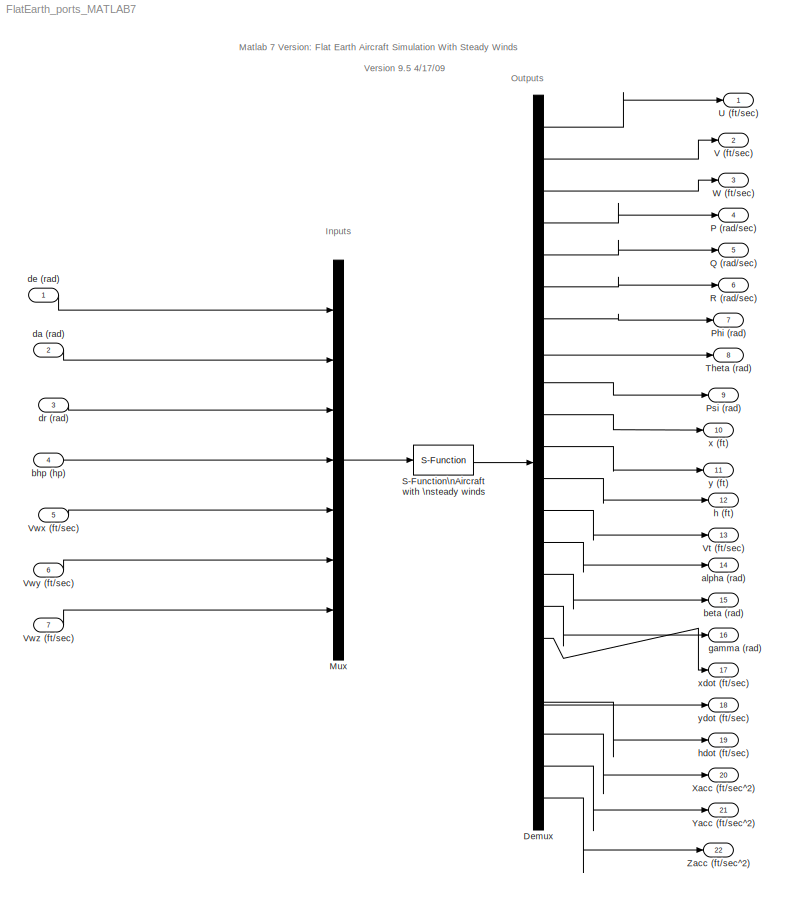
MODEL FlatEarth_ports_MATLAB7
KIND model
BLOCK [Demux] Demux
  Outputs = 22
  Ports = [1, 22]
BLOCK [Mux] Mux
  DisplayOption = bar
  Inputs = 7
  Ports = [7, 1]
BLOCK [Outport] P (rad//sec)
  BusOutputAsStruct = off
  IconDisplay = Port number
  Port = 4
BLOCK [Outport] Phi (rad)
  BusOutputAsStruct = off
  IconDisplay = Port number
  Port = 7
BLOCK [Outport] Psi (rad)
  BusOutputAsStruct = off
  IconDisplay = Port number
  Port = 9
BLOCK [Outport] Q (rad//sec)
  BusOutputAsStruct = off
  IconDisplay = Port number
  Port = 5
BLOCK [Outport] R (rad//sec)
  BusOutputAsStruct = off
  IconDisplay = Port number
  Port = 6
BLOCK [S-Function] S-Function\nAircraft with \nsteady winds
  FunctionName = aircraft9
  Parameters = constant,xIC,Xa
  Ports = [1, 1]
BLOCK [Outport] Theta (rad)
  BusOutputAsStruct = off
  IconDisplay = Port number
  Port = 8
BLOCK [Outport] U (ft//sec)
  BusOutputAsStruct = off
  IconDisplay = Port number
BLOCK [Outport] V (ft//sec)
  BusOutputAsStruct = off
  IconDisplay = Port number
  Port = 2
BLOCK [Outport] Vt (ft//sec)
  BusOutputAsStruct = off
  IconDisplay = Port number
  Port = 13
BLOCK [Inport] Vwx (ft//sec)
  IconDisplay = Port number
  LatchInput = off
  Port = 5
BLOCK [Inport] Vwy (ft//sec)
  IconDisplay = Port number
  LatchInput = off
  Port = 6
BLOCK [Inport] Vwz (ft//sec)
  IconDisplay = Port number
  LatchInput = off
  Port = 7
BLOCK [Outport] W (ft//sec)
  BusOutputAsStruct = off
  IconDisplay = Port number
  Port = 3
BLOCK [Outport] Xacc (ft//sec^2)
  BusOutputAsStruct = off
  IconDisplay = Port number
  Port = 20
BLOCK [Outport] Yacc (ft//sec^2)
  BusOutputAsStruct = off
  IconDisplay = Port number
  Port = 21
BLOCK [Outport] Zacc (ft//sec^2)
  BusOutputAsStruct = off
  IconDisplay = Port number
  Port = 22
BLOCK [Outport] alpha (rad)
  BusOutputAsStruct = off
  IconDisplay = Port number
  Port = 14
BLOCK [Outport] beta (rad)
  BusOutputAsStruct = off
  IconDisplay = Port number
  Port = 15
BLOCK [Inport] bhp (hp)
  IconDisplay = Port number
  LatchInput = off
  Port = 4
BLOCK [Inport] da (rad)
  IconDisplay = Port number
  LatchInput = off
  Port = 2
BLOCK [Inport] de (rad)
  IconDisplay = Port number
  LatchInput = off
  Port = 1
BLOCK [Inport] dr (rad)
  IconDisplay = Port number
  LatchInput = off
  Port = 3
BLOCK [Outport] gamma (rad)
  BusOutputAsStruct = off
  IconDisplay = Port number
  Port = 16
BLOCK [Outport] h (ft)
  BusOutputAsStruct = off
  IconDisplay = Port number
  Port = 12
BLOCK [Outport] hdot (ft//sec)
  BusOutputAsStruct = off
  IconDisplay = Port number
  Port = 19
BLOCK [Outport] x (ft)
  BusOutputAsStruct = off
  IconDisplay = Port number
  Port = 10
BLOCK [Outport] xdot (ft//sec)
  BusOutputAsStruct = off
  IconDisplay = Port number
  Port = 17
BLOCK [Outport] y (ft)
  BusOutputAsStruct = off
  IconDisplay = Port number
  Port = 11
BLOCK [Outport] ydot (ft//sec)
  BusOutputAsStruct = off
  IconDisplay = Port number
  Port = 18
ANNOTATION (root): Inputs
ANNOTATION (root): Matlab 7 Version: Flat Earth Aircraft Simulation With Steady Winds
ANNOTATION (root): Outputs
ANNOTATION (root): Version 9.5 4/17/09
LINE Demux:1 -> U (ft//sec):1
LINE Demux:10 -> x (ft):1
LINE Demux:11 -> y (ft):1
LINE Demux:12 -> h (ft):1
LINE Demux:13 -> Vt (ft//sec):1
LINE Demux:14 -> alpha (rad):1
LINE Demux:15 -> beta (rad):1
LINE Demux:16 -> gamma (rad):1
LINE Demux:17 -> xdot (ft//sec):1
LINE Demux:18 -> ydot (ft//sec):1
LINE Demux:19 -> hdot (ft//sec):1
LINE Demux:2 -> V (ft//sec):1
LINE Demux:20 -> Xacc (ft//sec^2):1
LINE Demux:21 -> Yacc (ft//sec^2):1
LINE Demux:22 -> Zacc (ft//sec^2):1
LINE Demux:3 -> W (ft//sec):1
LINE Demux:4 -> P (rad//sec):1
LINE Demux:5 -> Q (rad//sec):1
LINE Demux:6 -> R (rad//sec):1
LINE Demux:7 -> Phi (rad):1
LINE Demux:8 -> Theta (rad):1
LINE Demux:9 -> Psi (rad):1
LINE Mux:1 -> S-Function\nAircraft with \nsteady winds:1
LINE S-Function\nAircraft with \nsteady winds:1 -> Demux:1
LINE Vwx (ft//sec):1 -> Mux:5
LINE Vwy (ft//sec):1 -> Mux:6
LINE Vwz (ft//sec):1 -> Mux:7
LINE bhp (hp):1 -> Mux:4
LINE da (rad):1 -> Mux:2
LINE de (rad):1 -> Mux:1
LINE dr (rad):1 -> Mux:3
